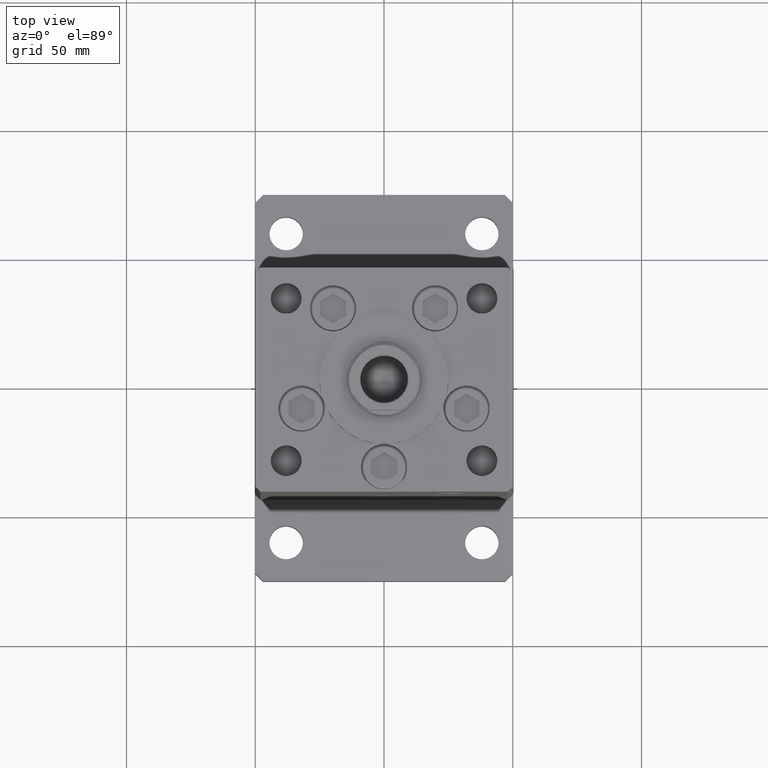
[diagram: clean part render]
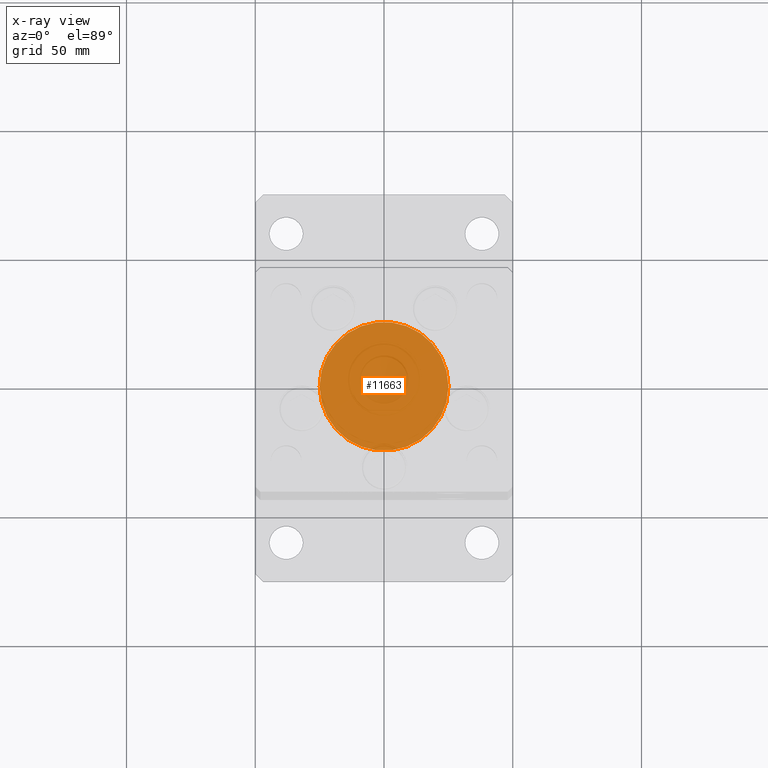
[diagram: x-ray — body ghosted, one internal face saturated and labeled with its STEP entity id]
A machine part, top view, then the same camera in x-ray: the body is ghosted and one INTERNAL B-rep face — a face not visible from any outside direction — is saturated and labeled: STEP entity #11663.
In plain terms, the highlighted planar face has unit normal (-0, 0, 1).
Its self-contained STEP definition (entity closure, byte-faithful):
#1168 = CIRCLE ( 'NONE', #35849, 25.00000000000000000 ) ;
#2316 = CARTESIAN_POINT ( 'NONE',  ( 0.000000000000000000, 0.000000000000000000, -34.25000000000000000 ) ) ;
#4128 = CIRCLE ( 'NONE', #18017, 25.00000000000000000 ) ;
#5482 = DIRECTION ( 'NONE',  ( 0.000000000000000000, 0.000000000000000000, -1.000000000000000000 ) ) ;
#6288 = CARTESIAN_POINT ( 'NONE',  ( 25.00000000000000000, 0.000000000000000000, -34.25000000000000000 ) ) ;
#6656 = DIRECTION ( 'NONE',  ( 0.000000000000000000, 0.000000000000000000, -1.000000000000000000 ) ) ;
#8701 = VERTEX_POINT ( 'NONE', #6288 ) ;
#9373 = CARTESIAN_POINT ( 'NONE',  ( -25.00000000000000000, 3.061616997868382254E-15, -34.25000000000000000 ) ) ;
#9555 = CARTESIAN_POINT ( 'NONE',  ( 0.000000000000000000, 0.000000000000000000, -34.25000000000000000 ) ) ;
#10368 = VERTEX_POINT ( 'NONE', #9373 ) ;
#11663 = ADVANCED_FACE ( 'NONE', ( #36225 ), #27546, .T. ) ;
#17545 = EDGE_CURVE ( 'NONE', #8701, #10368, #1168, .T. ) ;
#18017 = AXIS2_PLACEMENT_3D ( 'NONE', #2316, #6656, #36240 ) ;
#19002 = EDGE_LOOP ( 'NONE', ( #24259, #52854 ) ) ;
#24259 = ORIENTED_EDGE ( 'NONE', *, *, #17545, .T. ) ;
#27546 = PLANE ( 'NONE',  #40890 ) ;
#33714 = DIRECTION ( 'NONE',  ( -1.000000000000000000, 0.000000000000000000, 0.000000000000000000 ) ) ;
#35849 = AXIS2_PLACEMENT_3D ( 'NONE', #9555, #5482, #33714 ) ;
#36225 = FACE_OUTER_BOUND ( 'NONE', #19002, .T. ) ;
#36240 = DIRECTION ( 'NONE',  ( -1.000000000000000000, 0.000000000000000000, 0.000000000000000000 ) ) ;
#40890 = AXIS2_PLACEMENT_3D ( 'NONE', #48443, #48977, #44092 ) ;
#44092 = DIRECTION ( 'NONE',  ( -1.000000000000000000, 0.000000000000000000, -0.000000000000000000 ) ) ;
#48443 = CARTESIAN_POINT ( 'NONE',  ( 0.000000000000000000, 0.000000000000000000, -34.25000000000000000 ) ) ;
#48977 = DIRECTION ( 'NONE',  ( 0.000000000000000000, 0.000000000000000000, -1.000000000000000000 ) ) ;
#49292 = EDGE_CURVE ( 'NONE', #10368, #8701, #4128, .T. ) ;
#52854 = ORIENTED_EDGE ( 'NONE', *, *, #49292, .T. ) ;